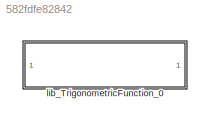
MODEL slx_582fdfe82842
KIND library
CONFIG AbsTol = auto
CONFIG EnableMultiTasking = off
CONFIG FixedStep = auto
CONFIG MaxStep = auto
CONFIG MinStep = auto
CONFIG RelTol = 1e-3
CONFIG SampleTimeConstraint = Unconstrained
CONFIG SolverName = VariableStepAuto
CONFIG StartTime = 0.0
CONFIG StopTime = 10.0
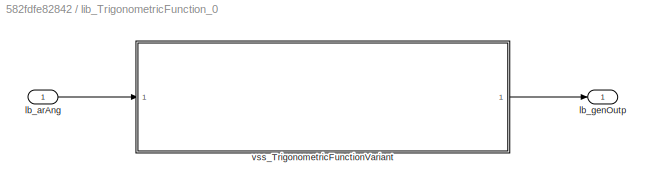
BLOCK [SubSystem] lib_TrigonometricFunction_0
BLOCK [Inport] lib_TrigonometricFunction_0/lb_arAng
BLOCK [Outport] lib_TrigonometricFunction_0/lb_genOutp
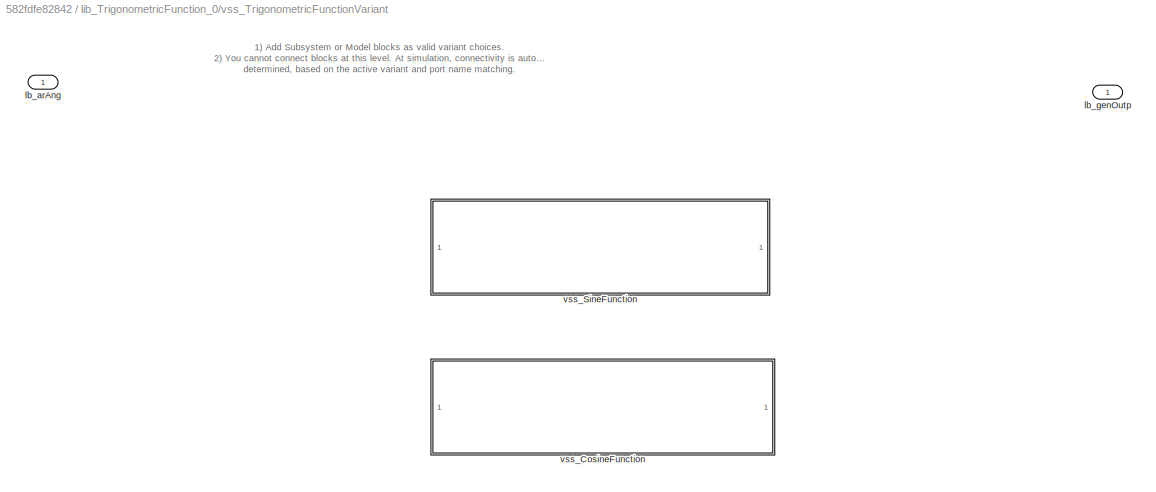
BLOCK [SubSystem] lib_TrigonometricFunction_0/vss_TrigonometricFunctionVariant
  LabelModeActiveChoice = lb_parSineFunctLbl
  Variant = on
  VariantControlMode = label
BLOCK [Inport] lib_TrigonometricFunction_0/vss_TrigonometricFunctionVariant/lb_arAng
BLOCK [Outport] lib_TrigonometricFunction_0/vss_TrigonometricFunctionVariant/lb_genOutp
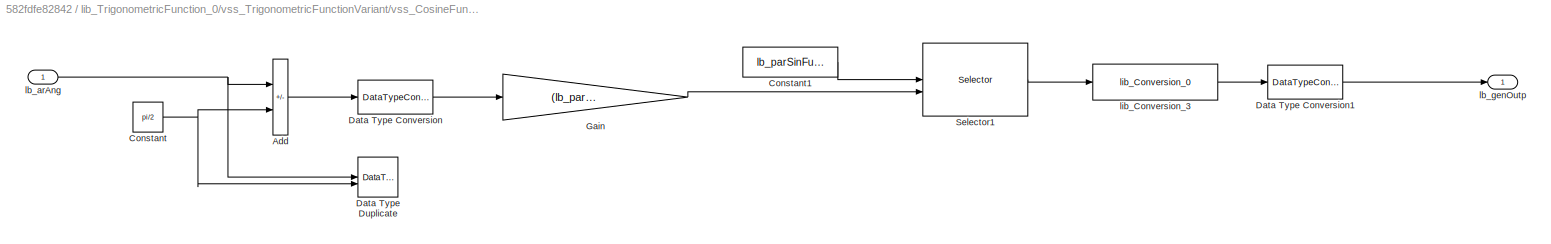
BLOCK [SubSystem] lib_TrigonometricFunction_0/vss_TrigonometricFunctionVariant/vss_CosineFunction
  VariantControl = lb_parCosFunctLbl
BLOCK [Sum] lib_TrigonometricFunction_0/vss_TrigonometricFunctionVariant/vss_CosineFunction/Add
  IconShape = rectangular
  Inputs = -+
  OutDataTypeStr = Inherit: Same as first input
  RndMeth = Simplest
BLOCK [Constant] lib_TrigonometricFunction_0/vss_TrigonometricFunctionVariant/vss_CosineFunction/Constant
  OutDataTypeStr = Inherit: Inherit via back propagation
  Value = pi/2
BLOCK [Constant] lib_TrigonometricFunction_0/vss_TrigonometricFunctionVariant/vss_CosineFunction/Constant1
  OutDataTypeStr = fixdt(1,16,2^-14,0)
  Value = lb_parSinFunLkt
BLOCK [DataTypeConversion] lib_TrigonometricFunction_0/vss_TrigonometricFunctionVariant/vss_CosineFunction/Data Type Conversion
  ConvertRealWorld = Stored Integer (SI)
  OutDataTypeStr = uint16
  RndMeth = Simplest
  SaturateOnIntegerOverflow = off
BLOCK [DataTypeConversion] lib_TrigonometricFunction_0/vss_TrigonometricFunctionVariant/vss_CosineFunction/Data Type Conversion1
  OutDataTypeStr = lb_parOutpDataType
  RndMeth = Floor
  SaturateOnIntegerOverflow = off
BLOCK [DataTypeDuplicate] lib_TrigonometricFunction_0/vss_TrigonometricFunctionVariant/vss_CosineFunction/Data Type Duplicate
BLOCK [Gain] lib_TrigonometricFunction_0/vss_TrigonometricFunctionVariant/vss_CosineFunction/Gain
  Gain = (lb_parSinLktSize-1)/(2^16)
  OutDataTypeStr = uint16
  RndMeth = Simplest
BLOCK [Selector] lib_TrigonometricFunction_0/vss_TrigonometricFunctionVariant/vss_CosineFunction/Selector1
  IndexMode = Zero-based
  IndexOptions = Index vector (port)
  Indices = [1 3]
  InputPortWidth = lb_parSinLktSize
  OutputSizes = 1
BLOCK [Inport] lib_TrigonometricFunction_0/vss_TrigonometricFunctionVariant/vss_CosineFunction/lb_arAng
BLOCK [Outport] lib_TrigonometricFunction_0/vss_TrigonometricFunctionVariant/vss_CosineFunction/lb_genOutp
BLOCK [Reference] lib_TrigonometricFunction_0/vss_TrigonometricFunctionVariant/vss_CosineFunction/lib_Conversion_3  REF=lib_conversion/lib_Conversion_0  (lib defined in slx_7f5c0202220d)
  LibrarySourceBlock = vhit_control_library/lib_Conversion_0
  SourceBlock = lib_conversion/lib_Conversion_0
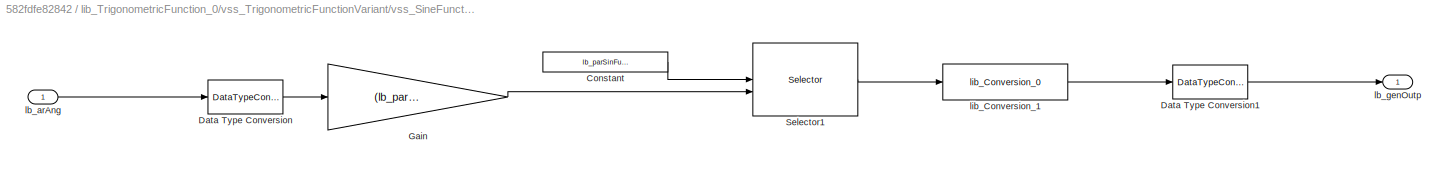
BLOCK [SubSystem] lib_TrigonometricFunction_0/vss_TrigonometricFunctionVariant/vss_SineFunction
  VariantControl = lb_parSineFunctLbl
BLOCK [Constant] lib_TrigonometricFunction_0/vss_TrigonometricFunctionVariant/vss_SineFunction/Constant
  OutDataTypeStr = fixdt(1,16,2^-14,0)
  Value = lb_parSinFunLkt
BLOCK [DataTypeConversion] lib_TrigonometricFunction_0/vss_TrigonometricFunctionVariant/vss_SineFunction/Data Type Conversion
  ConvertRealWorld = Stored Integer (SI)
  OutDataTypeStr = uint16
  RndMeth = Simplest
  SaturateOnIntegerOverflow = off
BLOCK [DataTypeConversion] lib_TrigonometricFunction_0/vss_TrigonometricFunctionVariant/vss_SineFunction/Data Type Conversion1
  OutDataTypeStr = lb_parOutpDataType
  RndMeth = Floor
  SaturateOnIntegerOverflow = off
BLOCK [Gain] lib_TrigonometricFunction_0/vss_TrigonometricFunctionVariant/vss_SineFunction/Gain
  Gain = (lb_parSinLktSize-1)/(2^16)
  OutDataTypeStr = uint16
  RndMeth = Simplest
BLOCK [Selector] lib_TrigonometricFunction_0/vss_TrigonometricFunctionVariant/vss_SineFunction/Selector1
  IndexMode = Zero-based
  IndexOptions = Index vector (port)
  Indices = [1 3]
  InputPortWidth = lb_parSinLktSize
  OutputSizes = 1
BLOCK [Inport] lib_TrigonometricFunction_0/vss_TrigonometricFunctionVariant/vss_SineFunction/lb_arAng
BLOCK [Outport] lib_TrigonometricFunction_0/vss_TrigonometricFunctionVariant/vss_SineFunction/lb_genOutp
BLOCK [Reference] lib_TrigonometricFunction_0/vss_TrigonometricFunctionVariant/vss_SineFunction/lib_Conversion_1  REF=lib_conversion/lib_Conversion_0  (lib defined in slx_7f5c0202220d)
  LibrarySourceBlock = vhit_control_library/lib_Conversion_0
  SourceBlock = lib_conversion/lib_Conversion_0
ANNOTATION lib_TrigonometricFunction_0/vss_TrigonometricFunctionVariant: 1) Add Subsystem or Model blocks as valid variant choices. 2) You cannot connect blocks at this level. At simulation, connectivity is automatically determined, based on the active variant and port name matching.
LINE lib_TrigonometricFunction_0/lb_arAng:1 -> lib_TrigonometricFunction_0/vss_TrigonometricFunctionVariant:1
LINE lib_TrigonometricFunction_0/vss_TrigonometricFunctionVariant/vss_CosineFunction/Add:1 -> lib_TrigonometricFunction_0/vss_TrigonometricFunctionVariant/vss_CosineFunction/Data Type Conversion:1
LINE lib_TrigonometricFunction_0/vss_TrigonometricFunctionVariant/vss_CosineFunction/Constant1:1 -> lib_TrigonometricFunction_0/vss_TrigonometricFunctionVariant/vss_CosineFunction/Selector1:1
NET lib_TrigonometricFunction_0/vss_TrigonometricFunctionVariant/vss_CosineFunction/Constant:1 -> lib_TrigonometricFunction_0/vss_TrigonometricFunctionVariant/vss_CosineFunction/Add:2, lib_TrigonometricFunction_0/vss_TrigonometricFunctionVariant/vss_CosineFunction/Data Type Duplicate:2
LINE lib_TrigonometricFunction_0/vss_TrigonometricFunctionVariant/vss_CosineFunction/Data Type Conversion1:1 -> lib_TrigonometricFunction_0/vss_TrigonometricFunctionVariant/vss_CosineFunction/lb_genOutp:1
LINE lib_TrigonometricFunction_0/vss_TrigonometricFunctionVariant/vss_CosineFunction/Data Type Conversion:1 -> lib_TrigonometricFunction_0/vss_TrigonometricFunctionVariant/vss_CosineFunction/Gain:1
LINE lib_TrigonometricFunction_0/vss_TrigonometricFunctionVariant/vss_CosineFunction/Gain:1 -> lib_TrigonometricFunction_0/vss_TrigonometricFunctionVariant/vss_CosineFunction/Selector1:2
LINE lib_TrigonometricFunction_0/vss_TrigonometricFunctionVariant/vss_CosineFunction/Selector1:1 -> lib_TrigonometricFunction_0/vss_TrigonometricFunctionVariant/vss_CosineFunction/lib_Conversion_3:1
NET lib_TrigonometricFunction_0/vss_TrigonometricFunctionVariant/vss_CosineFunction/lb_arAng:1 -> lib_TrigonometricFunction_0/vss_TrigonometricFunctionVariant/vss_CosineFunction/Add:1, lib_TrigonometricFunction_0/vss_TrigonometricFunctionVariant/vss_CosineFunction/Data Type Duplicate:1
LINE lib_TrigonometricFunction_0/vss_TrigonometricFunctionVariant/vss_CosineFunction/lib_Conversion_3:1 -> lib_TrigonometricFunction_0/vss_TrigonometricFunctionVariant/vss_CosineFunction/Data Type Conversion1:1
LINE lib_TrigonometricFunction_0/vss_TrigonometricFunctionVariant/vss_SineFunction/Constant:1 -> lib_TrigonometricFunction_0/vss_TrigonometricFunctionVariant/vss_SineFunction/Selector1:1
LINE lib_TrigonometricFunction_0/vss_TrigonometricFunctionVariant/vss_SineFunction/Data Type Conversion1:1 -> lib_TrigonometricFunction_0/vss_TrigonometricFunctionVariant/vss_SineFunction/lb_genOutp:1
LINE lib_TrigonometricFunction_0/vss_TrigonometricFunctionVariant/vss_SineFunction/Data Type Conversion:1 -> lib_TrigonometricFunction_0/vss_TrigonometricFunctionVariant/vss_SineFunction/Gain:1
LINE lib_TrigonometricFunction_0/vss_TrigonometricFunctionVariant/vss_SineFunction/Gain:1 -> lib_TrigonometricFunction_0/vss_TrigonometricFunctionVariant/vss_SineFunction/Selector1:2
LINE lib_TrigonometricFunction_0/vss_TrigonometricFunctionVariant/vss_SineFunction/Selector1:1 -> lib_TrigonometricFunction_0/vss_TrigonometricFunctionVariant/vss_SineFunction/lib_Conversion_1:1
LINE lib_TrigonometricFunction_0/vss_TrigonometricFunctionVariant/vss_SineFunction/lb_arAng:1 -> lib_TrigonometricFunction_0/vss_TrigonometricFunctionVariant/vss_SineFunction/Data Type Conversion:1
LINE lib_TrigonometricFunction_0/vss_TrigonometricFunctionVariant/vss_SineFunction/lib_Conversion_1:1 -> lib_TrigonometricFunction_0/vss_TrigonometricFunctionVariant/vss_SineFunction/Data Type Conversion1:1
LINE lib_TrigonometricFunction_0/vss_TrigonometricFunctionVariant:1 -> lib_TrigonometricFunction_0/lb_genOutp:1
note: NET lines group one-source signal fan-out (src -> all destinations, sorted); 1:1 wires keep LINE
